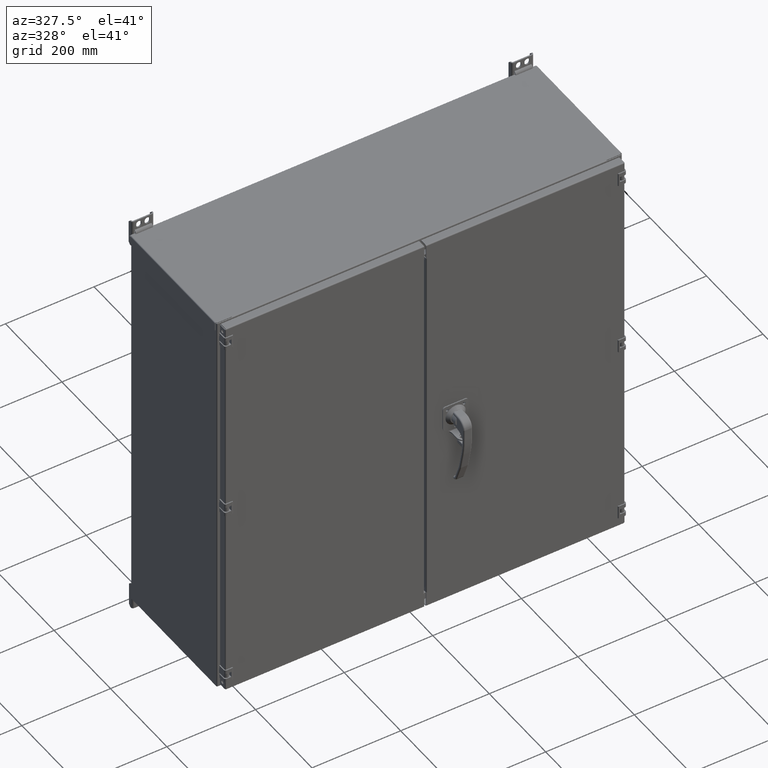
[diagram: clean part render]
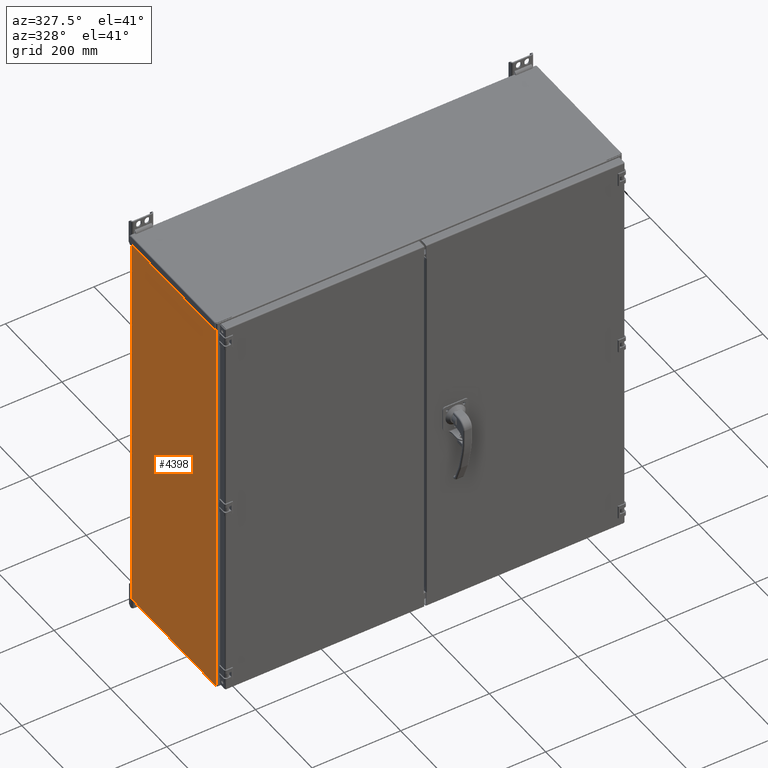
[diagram: same view with one face highlighted and labeled with its STEP entity id]
A machine part, auxiliary view. The second image highlights one B-rep face of the part: STEP entity #4398.
In plain terms, the highlighted planar face has unit normal (1, 0, 0).
Its self-contained STEP definition (entity closure, byte-faithful):
#4398 = ADVANCED_FACE( '', ( #8964 ), #8965, .F. );
#8964 = FACE_OUTER_BOUND( '', #18196, .T. );
#8965 = PLANE( '', #18197 );
#18196 = EDGE_LOOP( '', ( #31667, #31668, #31669, #31670 ) );
#18197 = AXIS2_PLACEMENT_3D( '', #31671, #31672, #31673 );
#31667 = ORIENTED_EDGE( '', *, *, #37584, .T. );
#31668 = ORIENTED_EDGE( '', *, *, #37342, .F. );
#31669 = ORIENTED_EDGE( '', *, *, #38115, .F. );
#31670 = ORIENTED_EDGE( '', *, *, #37645, .T. );
#31671 = CARTESIAN_POINT( '', ( -457.200000000000, -152.400000000000, -457.200000000000 ) );
#31672 = DIRECTION( '', ( 1.00000000000000, 0.000000000000000, 0.000000000000000 ) );
#31673 = DIRECTION( '', ( 0.000000000000000, 0.000000000000000, -1.00000000000000 ) );
#37342 = EDGE_CURVE( '', #44083, #44081, #44085, .T. );
#37584 = EDGE_CURVE( '', #44398, #44081, #44399, .T. );
#37645 = EDGE_CURVE( '', #44471, #44398, #44472, .T. );
#38115 = EDGE_CURVE( '', #44471, #44083, #45030, .T. );
#44081 = VERTEX_POINT( '', #59166 );
#44083 = VERTEX_POINT( '', #59168 );
#44085 = LINE( '', #59170, #59171 );
#44398 = VERTEX_POINT( '', #59956 );
#44399 = LINE( '', #59957, #59958 );
#44471 = VERTEX_POINT( '', #60154 );
#44472 = LINE( '', #60155, #60156 );
#45030 = LINE( '', #61450, #61451 );
#59166 = CARTESIAN_POINT( '', ( -457.200000000000, 150.063200000000, 457.200000000000 ) );
#59168 = CARTESIAN_POINT( '', ( -457.200000000000, 150.063200000000, -457.200000000000 ) );
#59170 = CARTESIAN_POINT( '', ( -457.200000000000, 150.063200000000, -457.200000000000 ) );
#59171 = VECTOR( '', #64833, 1000.00000000000 );
#59956 = CARTESIAN_POINT( '', ( -457.200000000000, -150.063200000000, 457.200000000000 ) );
#59957 = CARTESIAN_POINT( '', ( -457.200000000000, -152.400000000000, 457.200000000000 ) );
#59958 = VECTOR( '', #65006, 1000.00000000000 );
#60154 = CARTESIAN_POINT( '', ( -457.200000000000, -150.063200000000, -457.200000000000 ) );
#60155 = CARTESIAN_POINT( '', ( -457.200000000000, -150.063200000000, -457.200000000000 ) );
#60156 = VECTOR( '', #65053, 1000.00000000000 );
#61450 = CARTESIAN_POINT( '', ( -457.200000000000, -152.400000000000, -457.200000000000 ) );
#61451 = VECTOR( '', #65364, 1000.00000000000 );
#64833 = DIRECTION( '', ( 0.000000000000000, 0.000000000000000, 1.00000000000000 ) );
#65006 = DIRECTION( '', ( 0.000000000000000, 1.00000000000000, 0.000000000000000 ) );
#65053 = DIRECTION( '', ( 0.000000000000000, 0.000000000000000, 1.00000000000000 ) );
#65364 = DIRECTION( '', ( 0.000000000000000, 1.00000000000000, 0.000000000000000 ) );